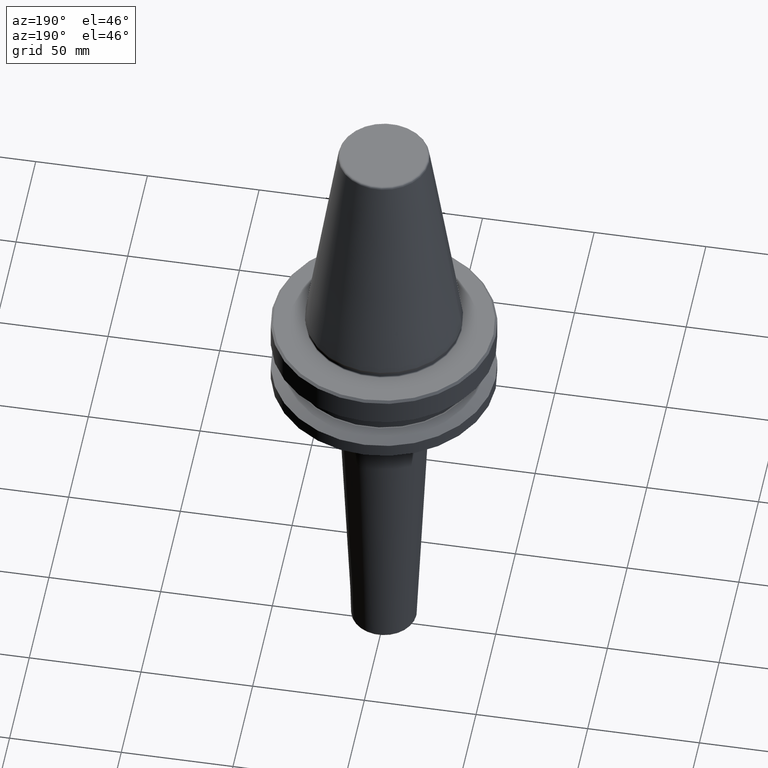
[diagram: clean part render]
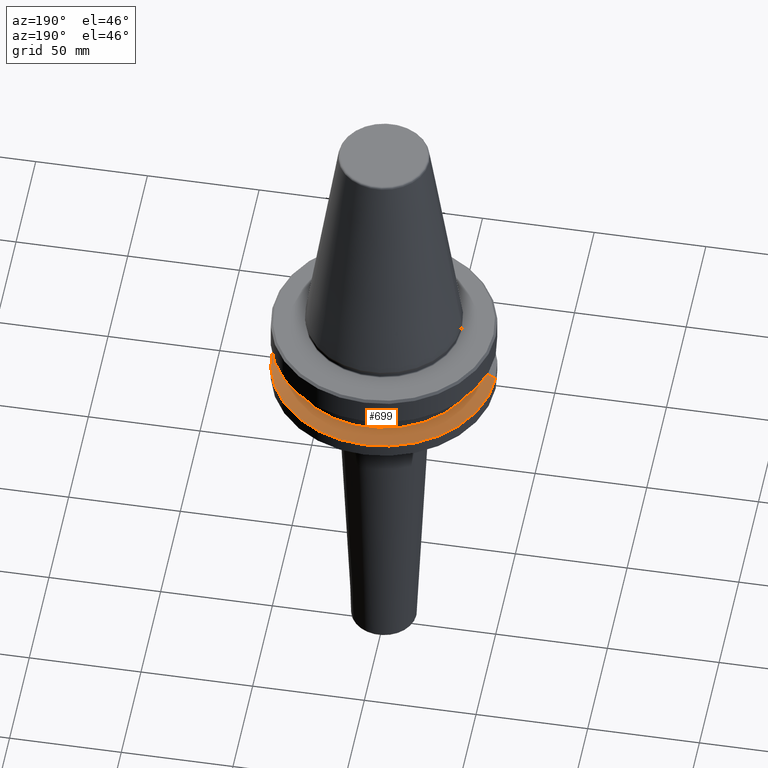
[diagram: same view with one face highlighted and labeled with its STEP entity id]
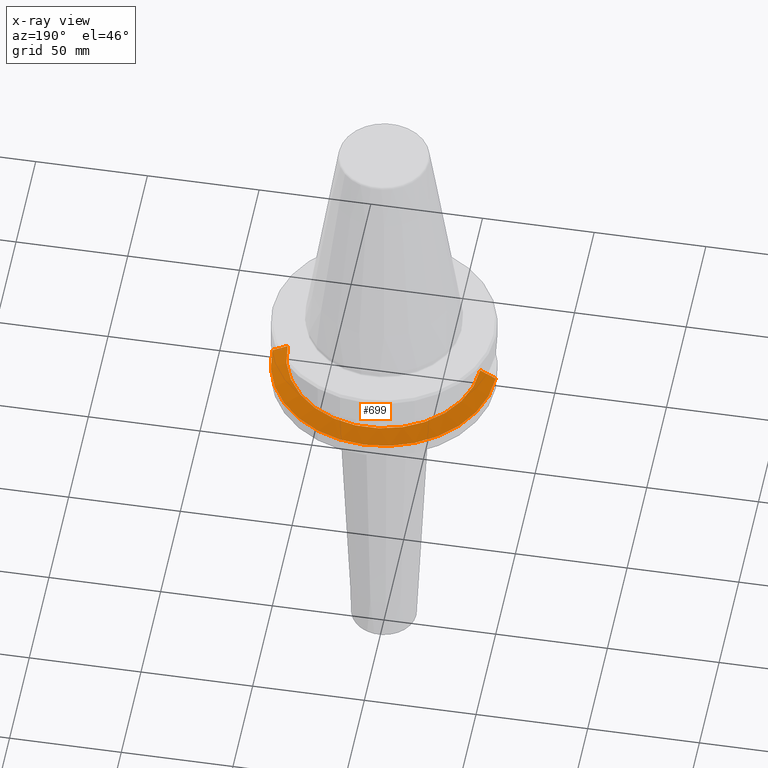
[diagram: x-ray of the same camera — body ghosted, the highlighted face saturated]
A machine part, auxiliary view. The second image highlights one B-rep face of the part: STEP entity #699.
The next image is the same camera in x-ray: the body ghosted, the highlighted face saturated — about 0% of this face is hidden behind the body in this view.
In plain terms, the highlighted conical surface has half-angle 60 deg.
Its self-contained STEP definition (entity closure, byte-faithful):
#38 = CARTESIAN_POINT ( 'NONE',  ( -50.00000000000000000, 0.0000000000000000000, -30.69977999677324500 ) ) ;
#45 = LINE ( 'NONE', #88, #268 ) ;
#59 = AXIS2_PLACEMENT_3D ( 'NONE', #334, #231, #1003 ) ;
#72 = VECTOR ( 'NONE', #684, 1000.000000000000000 ) ;
#88 = CARTESIAN_POINT ( 'NONE',  ( 50.00000000000000000, 6.123233995736766100E-015, -30.69977999677324500 ) ) ;
#93 = EDGE_LOOP ( 'NONE', ( #379, #142, #169, #409 ) ) ;
#99 = LINE ( 'NONE', #38, #72 ) ;
#136 = AXIS2_PLACEMENT_3D ( 'NONE', #168, #987, #296 ) ;
#142 = ORIENTED_EDGE ( 'NONE', *, *, #878, .T. ) ;
#144 = CARTESIAN_POINT ( 'NONE',  ( -50.00000000000000000, 6.123233995736766100E-015, -30.69977999677324500 ) ) ;
#164 = DIRECTION ( 'NONE',  ( 0.8660254037844383700, 1.060575238724906500E-016, -0.5000000000000004400 ) ) ;
#168 = CARTESIAN_POINT ( 'NONE',  ( 0.0000000000000000000, 0.0000000000000000000, -30.69977999677324500 ) ) ;
#169 = ORIENTED_EDGE ( 'NONE', *, *, #420, .T. ) ;
#210 = FACE_OUTER_BOUND ( 'NONE', #93, .T. ) ;
#231 = DIRECTION ( 'NONE',  ( 0.0000000000000000000, 0.0000000000000000000, -1.000000000000000000 ) ) ;
#268 = VECTOR ( 'NONE', #164, 1000.000000000000000 ) ;
#296 = DIRECTION ( 'NONE',  ( 1.000000000000000000, 0.0000000000000000000, 0.0000000000000000000 ) ) ;
#334 = CARTESIAN_POINT ( 'NONE',  ( 0.0000000000000000000, 0.0000000000000000000, -30.69977999677324500 ) ) ;
#379 = ORIENTED_EDGE ( 'NONE', *, *, #599, .F. ) ;
#409 = ORIENTED_EDGE ( 'NONE', *, *, #735, .F. ) ;
#420 = EDGE_CURVE ( 'NONE', #521, #754, #685, .T. ) ;
#435 = CARTESIAN_POINT ( 'NONE',  ( 50.00000000000000000, 0.0000000000000000000, -30.69977999677324500 ) ) ;
#479 = DIRECTION ( 'NONE',  ( -0.0000000000000000000, -0.0000000000000000000, 1.000000000000000000 ) ) ;
#482 = CARTESIAN_POINT ( 'NONE',  ( 0.0000000000000000000, 0.0000000000000000000, -26.69999999999998900 ) ) ;
#521 = VERTEX_POINT ( 'NONE', #435 ) ;
#599 = EDGE_CURVE ( 'NONE', #872, #677, #893, .T. ) ;
#677 = VERTEX_POINT ( 'NONE', #811 ) ;
#684 = DIRECTION ( 'NONE',  ( -0.8660254037844383700, 0.0000000000000000000, -0.5000000000000004400 ) ) ;
#685 = CIRCLE ( 'NONE', #136, 50.00000000000000000 ) ;
#699 = ADVANCED_FACE ( 'NONE', ( #210 ), #883, .T. ) ;
#735 = EDGE_CURVE ( 'NONE', #677, #754, #99, .T. ) ;
#754 = VERTEX_POINT ( 'NONE', #144 ) ;
#795 = DIRECTION ( 'NONE',  ( 1.000000000000000000, 0.0000000000000000000, 0.0000000000000000000 ) ) ;
#811 = CARTESIAN_POINT ( 'NONE',  ( -43.07217782649105000, 0.0000000000000000000, -26.69999999999998900 ) ) ;
#872 = VERTEX_POINT ( 'NONE', #940 ) ;
#873 = AXIS2_PLACEMENT_3D ( 'NONE', #482, #479, #795 ) ;
#878 = EDGE_CURVE ( 'NONE', #872, #521, #45, .T. ) ;
#883 = CONICAL_SURFACE ( 'NONE', #59, 50.00000000000000000, 1.047197551196597200 ) ;
#893 = CIRCLE ( 'NONE', #873, 43.07217782649105000 ) ;
#940 = CARTESIAN_POINT ( 'NONE',  ( 43.07217782649105000, 5.699027233244276800E-015, -26.69999999999998900 ) ) ;
#987 = DIRECTION ( 'NONE',  ( -0.0000000000000000000, -0.0000000000000000000, 1.000000000000000000 ) ) ;
#1003 = DIRECTION ( 'NONE',  ( -1.000000000000000000, 0.0000000000000000000, 0.0000000000000000000 ) ) ;